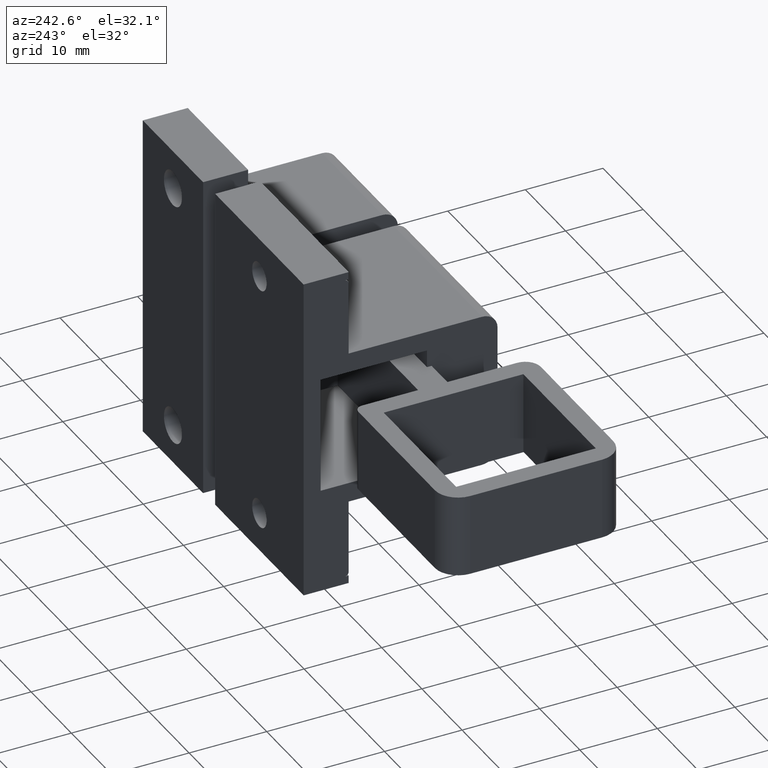
[diagram: clean part render]
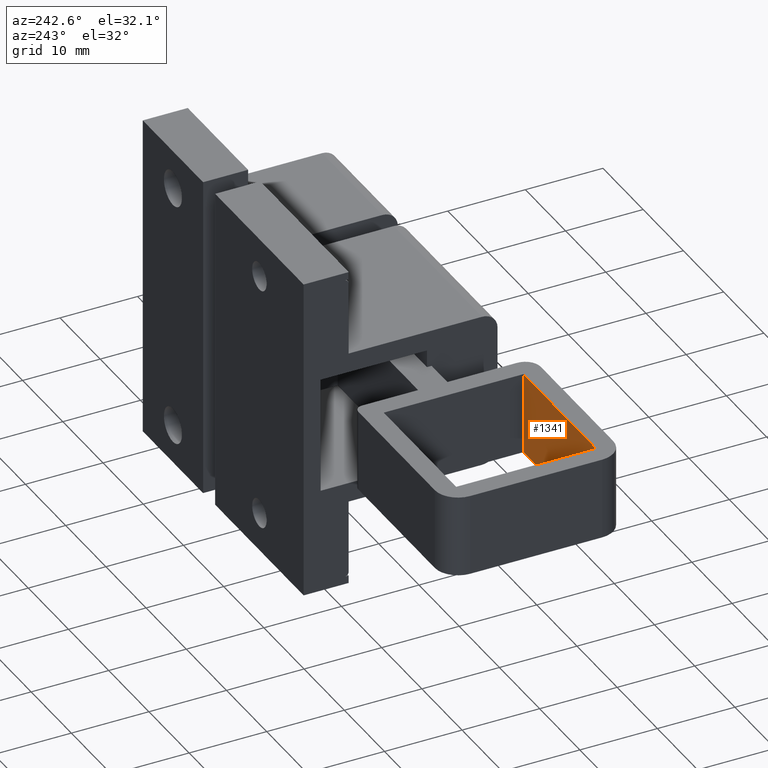
[diagram: same view with one face highlighted and labeled with its STEP entity id]
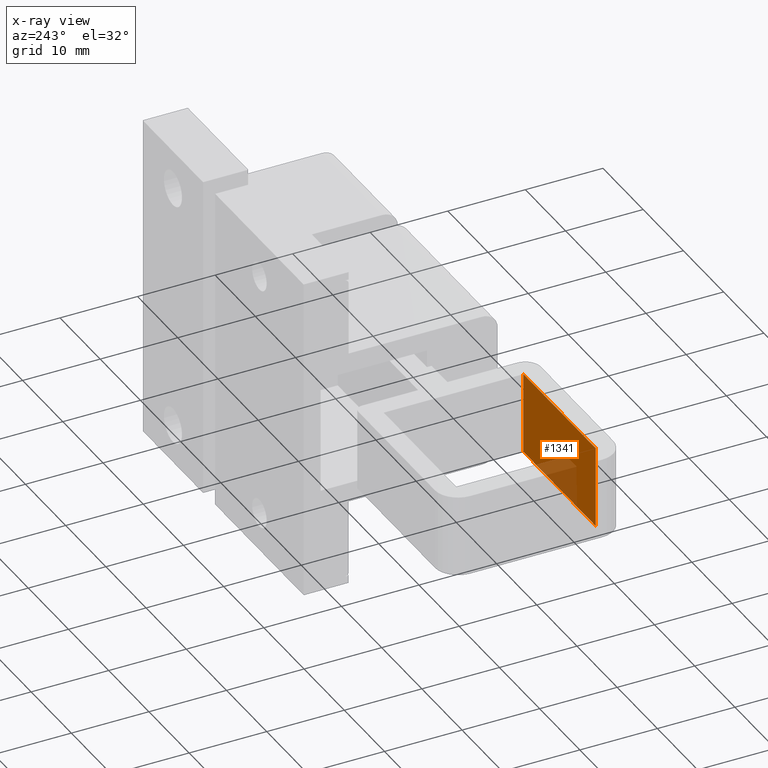
[diagram: x-ray of the same camera — body ghosted, the highlighted face saturated]
A machine part, auxiliary view. The second image highlights one B-rep face of the part: STEP entity #1341.
The next image is the same camera in x-ray: the body ghosted, the highlighted face saturated — about 18% of this face is hidden behind the body in this view.
In plain terms, the highlighted planar face has unit normal (-0, 1, 0).
Its self-contained STEP definition (entity closure, byte-faithful):
#86=PLANE('',#1512);
#148=FACE_OUTER_BOUND('',#226,.T.);
#226=EDGE_LOOP('',(#1168,#1169,#1170,#1171));
#350=LINE('',#2198,#498);
#355=LINE('',#2209,#503);
#357=LINE('',#2212,#505);
#358=LINE('',#2213,#506);
#498=VECTOR('',#1809,10.5);
#503=VECTOR('',#1818,10.5);
#505=VECTOR('',#1822,18.);
#506=VECTOR('',#1823,18.);
#669=VERTEX_POINT('',#2191);
#672=VERTEX_POINT('',#2196);
#675=VERTEX_POINT('',#2206);
#676=VERTEX_POINT('',#2208);
#841=EDGE_CURVE('',#669,#672,#350,.T.);
#846=EDGE_CURVE('',#675,#676,#355,.T.);
#848=EDGE_CURVE('',#675,#669,#357,.T.);
#849=EDGE_CURVE('',#676,#672,#358,.T.);
#1168=ORIENTED_EDGE('',*,*,#848,.T.);
#1169=ORIENTED_EDGE('',*,*,#841,.T.);
#1170=ORIENTED_EDGE('',*,*,#849,.F.);
#1171=ORIENTED_EDGE('',*,*,#846,.F.);
#1341=ADVANCED_FACE('',(#148),#86,.T.);
#1512=AXIS2_PLACEMENT_3D('',#2211,#1820,#1821);
#1809=DIRECTION('',(1.,0.,0.));
#1818=DIRECTION('',(1.,0.,0.));
#1820=DIRECTION('center_axis',(0.,0.,-1.));
#1821=DIRECTION('ref_axis',(0.,1.,0.));
#1822=DIRECTION('',(0.,1.,0.));
#1823=DIRECTION('',(0.,1.,0.));
#2191=CARTESIAN_POINT('',(-5.25,43.,21.5));
#2196=CARTESIAN_POINT('',(5.25,43.,21.5));
#2198=CARTESIAN_POINT('',(-5.25,43.,21.5));
#2206=CARTESIAN_POINT('',(-5.25,25.,21.5));
#2208=CARTESIAN_POINT('',(5.25,25.,21.5));
#2209=CARTESIAN_POINT('',(-5.25,25.,21.5));
#2211=CARTESIAN_POINT('Origin',(-5.25,25.,21.5));
#2212=CARTESIAN_POINT('',(-5.25,25.,21.5));
#2213=CARTESIAN_POINT('',(5.25,25.,21.5));